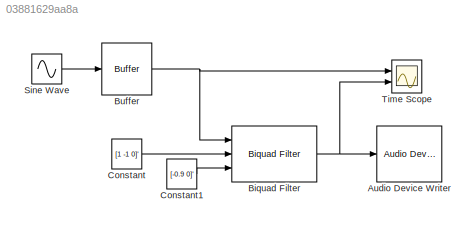
MODEL slx_03881629aa8a
KIND model
CONFIG AbsTol = auto
CONFIG EnableMultiTasking = off
CONFIG FixedStep = auto
CONFIG MaxStep = auto
CONFIG MinStep = auto
CONFIG RelTol = 1e-3
CONFIG SampleTimeConstraint = Unconstrained
CONFIG Solver = VariableStepAuto
CONFIG SolverName = VariableStepAuto
CONFIG StartTime = 0.0
CONFIG StopTime = 10.0
BLOCK [Reference] Audio Device Writer  REF=dspsnks4/Audio Device
Writer
  Ports = [1]
  SourceBlock = dspsnks4/Audio Device\nWriter
  SourceProductBaseCode = DS
  SourceProductName = DSP System Toolbox
  SourceType = Audio Device Writer
BLOCK [Reference] Biquad Filter  REF=dsparch4/Biquad Filter
  Ports = [3, 1]
  SourceBlock = dsparch4/Biquad Filter
  SourceProductBaseCode = DS
  SourceProductName = DSP System Toolbox
  SourceType = Biquad Filter
  UserDataPersistent = on
BLOCK [Buffer] Buffer
  N = 1024
  OutputFrames = off
BLOCK [Constant] Constant
  Value = [1 -1 0]'
BLOCK [Constant] Constant1
  Value = [-0.9 0]'
BLOCK [Sin] Sine Wave
  Ports = [0, 1]
  SampleTime = 1/44100
  Samples = 9
  SineType = Sample based
BLOCK [Scope] Time Scope
  DefaultConfigurationName = spbscopes.TimeScopeBlockCfg
  Floating = off
  NumInputPorts = 2
  Ports = [2]
  ScopeSpecificationString = spbscopes.TimeScopeBlockCfg('CurrentConfiguration', extmgr.ConfigurationSet(extmgr.Configuration('Core','General UI',true,'FigureColor',[0.156862745098039 0.156862745098039 0.156862745098039]),extmgr.Configuration('Core','Source UI',true),extmgr.Configuration('Sources','WiredSimulink',true),extmgr.Configuration('Visuals','Time Domain',true,'DisplayPropertyDefaults',struct('MinYLimReal','-1.24999',...<+1525ch>
  UserDataPersistent = on
NET Biquad Filter:1 -> Audio Device Writer:1, Time Scope:2
NET Buffer:1 -> Biquad Filter:1, Time Scope:1
LINE Constant1:1 -> Biquad Filter:3
LINE Constant:1 -> Biquad Filter:2
LINE Sine Wave:1 -> Buffer:1
note: NET lines group one-source signal fan-out (src -> all destinations, sorted); 1:1 wires keep LINE
